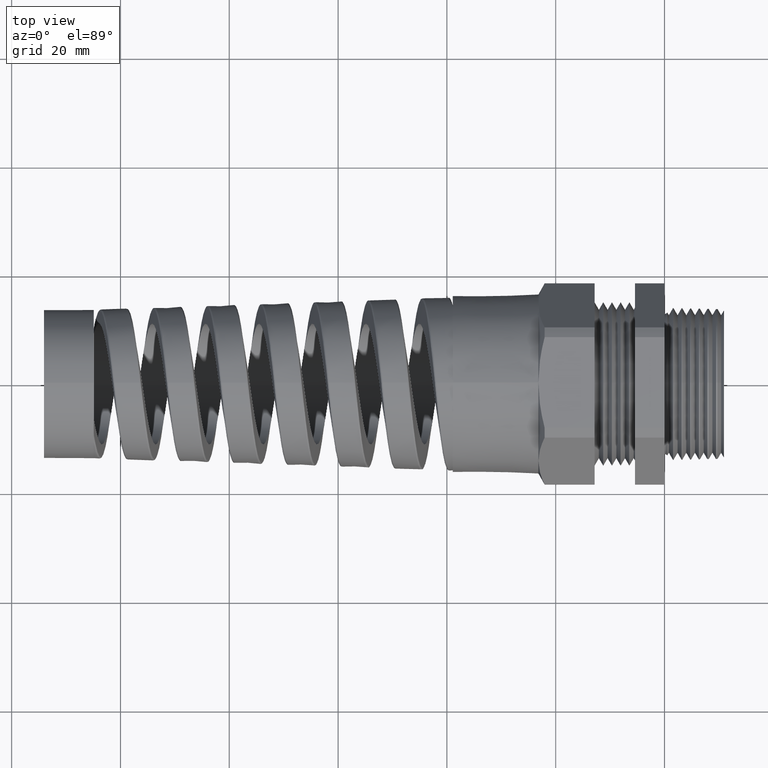
[diagram: clean part render]
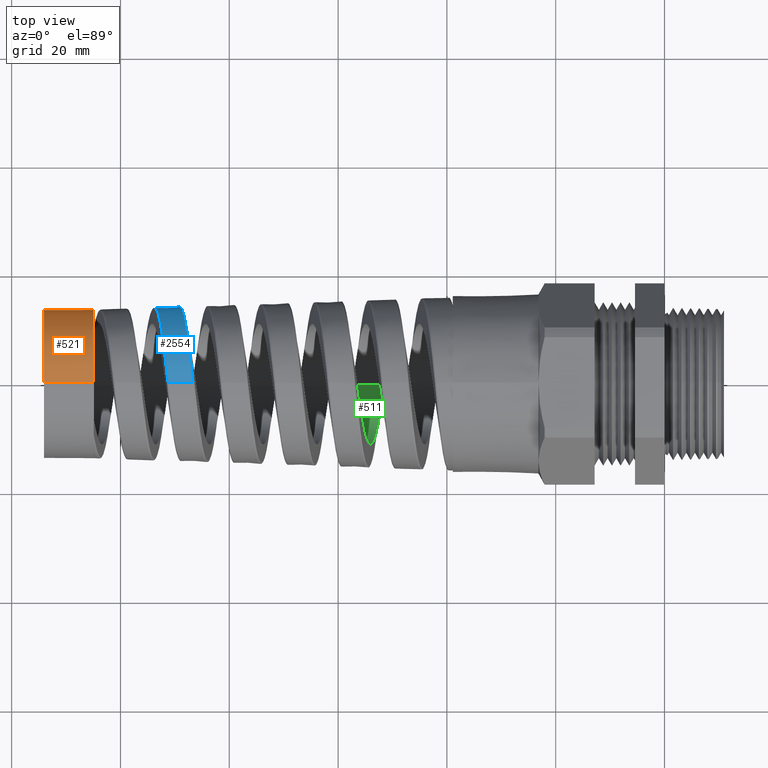
[diagram: same view with three faces highlighted in distinct colors, each labeled with its STEP entity id]
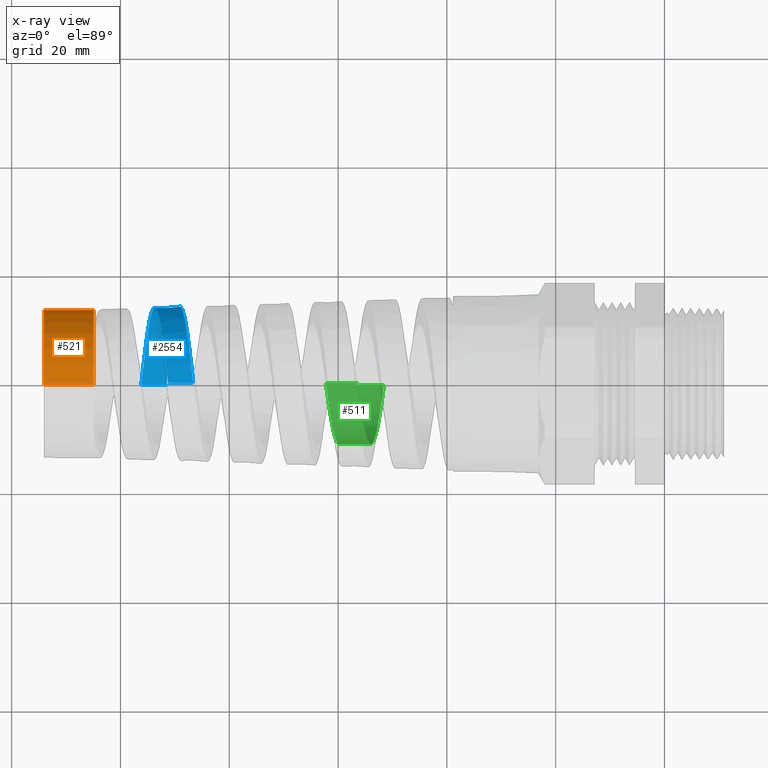
[diagram: x-ray of the same camera — body ghosted, the three highlighted faces saturated]
A machine part, top view with three faces highlighted in distinct colors.
The next image is the same camera in x-ray (body ghosted, the three faces saturated) — at least one of them is partly hidden behind the body in this view.
Their STEP definitions:

[orange] entity #521 — the highlighted cylindrical surface (partial cylindrical patch) has radius 13.6545 mm, axis along (1, 0, 0).
#198 = EDGE_LOOP ( 'NONE', ( #537, #534, #2073, #1815, #1701 ) ) ;
#521 = ADVANCED_FACE ( 'NONE', ( #2844 ), #2839, .T. ) ;
#522 = VERTEX_POINT ( 'NONE', #2834 ) ;
#523 = VERTEX_POINT ( 'NONE', #2833 ) ;
#532 = VERTEX_POINT ( 'NONE', #2966 ) ;
#534 = ORIENTED_EDGE ( 'NONE', *, *, #536, .T. ) ;
#536 = EDGE_CURVE ( 'NONE', #532, #523, #2960, .T. ) ;
#537 = ORIENTED_EDGE ( 'NONE', *, *, #553, .F. ) ;
#553 = EDGE_CURVE ( 'NONE', #532, #522, #2946, .T. ) ;
#1658 = EDGE_CURVE ( 'NONE', #522, #1688, #9304, .T. ) ;
#1660 = EDGE_CURVE ( 'NONE', #523, #1759, #9298, .T. ) ;
#1688 = VERTEX_POINT ( 'NONE', #9371 ) ;
#1701 = ORIENTED_EDGE ( 'NONE', *, *, #1658, .F. ) ;
#1759 = VERTEX_POINT ( 'NONE', #9602 ) ;
#1815 = ORIENTED_EDGE ( 'NONE', *, *, #2071, .F. ) ;
#2071 = EDGE_CURVE ( 'NONE', #1688, #1759, #9822, .T. ) ;
#2073 = ORIENTED_EDGE ( 'NONE', *, *, #1660, .T. ) ;
#2833 = CARTESIAN_POINT ( 'NONE',  ( -4.130799999999999800, 6.583458507736329500E-017, 0.5375801833083619900 ) ) ;
#2834 = CARTESIAN_POINT ( 'NONE',  ( -4.489999999999999300, 0.0000000000000000000, -0.5375801833083619900 ) ) ;
#2835 = DIRECTION ( 'NONE',  ( 0.0000000000000000000, 0.0000000000000000000, -1.000000000000000000 ) ) ;
#2836 = DIRECTION ( 'NONE',  ( 1.000000000000000000, 0.0000000000000000000, 0.0000000000000000000 ) ) ;
#2837 = CARTESIAN_POINT ( 'NONE',  ( -4.489999999999999300, 0.0000000000000000000, 0.0000000000000000000 ) ) ;
#2838 = AXIS2_PLACEMENT_3D ( 'NONE', #2837, #2836, #2835 ) ;
#2839 = CYLINDRICAL_SURFACE ( 'NONE', #2838, 0.5375801833083619900 ) ;
#2844 = FACE_OUTER_BOUND ( 'NONE', #198, .T. ) ;
#2942 = DIRECTION ( 'NONE',  ( 0.0000000000000000000, 0.0000000000000000000, 1.000000000000000000 ) ) ;
#2943 = DIRECTION ( 'NONE',  ( -1.000000000000000000, 0.0000000000000000000, 0.0000000000000000000 ) ) ;
#2944 = CARTESIAN_POINT ( 'NONE',  ( -4.489999999999999300, 0.0000000000000000000, 0.0000000000000000000 ) ) ;
#2945 = AXIS2_PLACEMENT_3D ( 'NONE', #2944, #2943, #2942 ) ;
#2946 = CIRCLE ( 'NONE', #2945, 0.5375801833083619900 ) ;
#2957 = DIRECTION ( 'NONE',  ( 1.000000000000000000, 0.0000000000000000000, 0.0000000000000000000 ) ) ;
#2958 = VECTOR ( 'NONE', #2957, 39.37007874015748100 ) ;
#2959 = CARTESIAN_POINT ( 'NONE',  ( -4.489999999999999300, 6.583458507736329500E-017, 0.5375801833083619900 ) ) ;
#2960 = LINE ( 'NONE', #2959, #2958 ) ;
#2966 = CARTESIAN_POINT ( 'NONE',  ( -4.489999999999999300, 6.583458507736329500E-017, 0.5375801833083619900 ) ) ;
#9292 = DIRECTION ( 'NONE',  ( 0.0000000000000000000, 0.0000000000000000000, 1.000000000000000000 ) ) ;
#9293 = DIRECTION ( 'NONE',  ( -1.000000000000000000, 0.0000000000000000000, 0.0000000000000000000 ) ) ;
#9295 = CARTESIAN_POINT ( 'NONE',  ( -4.130799999999999800, 0.0000000000000000000, 0.0000000000000000000 ) ) ;
#9296 = AXIS2_PLACEMENT_3D ( 'NONE', #9295, #9293, #9292 ) ;
#9298 = CIRCLE ( 'NONE', #9296, 0.5375801833083619900 ) ;
#9300 = DIRECTION ( 'NONE',  ( 1.000000000000000000, 0.0000000000000000000, 0.0000000000000000000 ) ) ;
#9301 = VECTOR ( 'NONE', #9300, 39.37007874015748100 ) ;
#9303 = CARTESIAN_POINT ( 'NONE',  ( -4.489999999999999300, 0.0000000000000000000, -0.5375801833083619900 ) ) ;
#9304 = LINE ( 'NONE', #9303, #9301 ) ;
#9371 = CARTESIAN_POINT ( 'NONE',  ( -4.130799999999999800, 0.0000000000000000000, -0.5375801833083612100 ) ) ;
#9602 = CARTESIAN_POINT ( 'NONE',  ( -4.130799999999999800, 0.3509568706405258300, -0.4072121418082477200 ) ) ;
#9822 = CIRCLE ( 'NONE', #9896, 0.5375801833083612100 ) ;
#9893 = DIRECTION ( 'NONE',  ( 0.0000000000000000000, 0.0000000000000000000, -1.000000000000000000 ) ) ;
#9894 = DIRECTION ( 'NONE',  ( 1.000000000000000000, 0.0000000000000000000, 0.0000000000000000000 ) ) ;
#9895 = CARTESIAN_POINT ( 'NONE',  ( -4.130799999999999800, 0.0000000000000000000, 0.0000000000000000000 ) ) ;
#9896 = AXIS2_PLACEMENT_3D ( 'NONE', #9895, #9894, #9893 ) ;

[blue] entity #2554 — the highlighted conical surface has half-angle 2.001 deg.
#2522 = VERTEX_POINT ( 'NONE', #10648 ) ;
#2523 = VERTEX_POINT ( 'NONE', #10646 ) ;
#2525 = ORIENTED_EDGE ( 'NONE', *, *, #2744, .T. ) ;
#2554 = ADVANCED_FACE ( 'NONE', ( #10780 ), #10778, .T. ) ;
#2565 = ORIENTED_EDGE ( 'NONE', *, *, #2566, .T. ) ;
#2566 = EDGE_CURVE ( 'NONE', #2523, #2522, #10768, .T. ) ;
#2744 = EDGE_CURVE ( 'NONE', #2522, #2745, #11619, .T. ) ;
#2745 = VERTEX_POINT ( 'NONE', #11615 ) ;
#2746 = ORIENTED_EDGE ( 'NONE', *, *, #2747, .T. ) ;
#2747 = EDGE_CURVE ( 'NONE', #2745, #2748, #11613, .T. ) ;
#2748 = VERTEX_POINT ( 'NONE', #11614 ) ;
#2749 = ORIENTED_EDGE ( 'NONE', *, *, #2750, .F. ) ;
#2750 = EDGE_CURVE ( 'NONE', #2523, #2748, #11641, .T. ) ;
#2766 = EDGE_LOOP ( 'NONE', ( #2565, #2525, #2746, #2749 ) ) ;
#10646 = CARTESIAN_POINT ( 'NONE',  ( -3.786872882697698700, 8.793065815992271000E-017, -0.5495940488530302000 ) ) ;
#10648 = CARTESIAN_POINT ( 'NONE',  ( -3.592956713912145900, 6.711776482264896600E-013, 0.5563678176590510800 ) ) ;
#10748 = CARTESIAN_POINT ( 'NONE',  ( -3.721976318761020900, 0.4793345083299178100, -0.2740841356049117900 ) ) ;
#10749 = CARTESIAN_POINT ( 'NONE',  ( -3.724006834402183100, 0.4699889070686809100, -0.2896701516364032500 ) ) ;
#10750 = CARTESIAN_POINT ( 'NONE',  ( -3.730069538837058400, 0.4398939662536319200, -0.3347182836577742800 ) ) ;
#10751 = CARTESIAN_POINT ( 'NONE',  ( -3.734082733646054000, 0.4170553963886068900, -0.3625806559591394600 ) ) ;
#10752 = CARTESIAN_POINT ( 'NONE',  ( -3.740173537076453100, 0.3785842919798662100, -0.4010639414473796100 ) ) ;
#10753 = CARTESIAN_POINT ( 'NONE',  ( -3.742224561312010900, 0.3649904517737623300, -0.4133778245951536000 ) ) ;
#10754 = CARTESIAN_POINT ( 'NONE',  ( -3.746287019097188000, 0.3369366985889102900, -0.4363674041494167200 ) ) ;
#10755 = CARTESIAN_POINT ( 'NONE',  ( -3.748307315232322100, 0.3224255991027689100, -0.4471044087300893300 ) ) ;
#10756 = CARTESIAN_POINT ( 'NONE',  ( -3.754363827391573600, 0.2774710994662995500, -0.4770855045460378800 ) ) ;
#10757 = CARTESIAN_POINT ( 'NONE',  ( -3.758401022980191200, 0.2455488150511674900, -0.4941511239814970800 ) ) ;
#10758 = CARTESIAN_POINT ( 'NONE',  ( -3.766583399758178400, 0.1780728269294687700, -0.5219721861470451000 ) ) ;
#10759 = CARTESIAN_POINT ( 'NONE',  ( -3.770612741754701100, 0.1435046124046407400, -0.5323375483973240600 ) ) ;
#10760 = CARTESIAN_POINT ( 'NONE',  ( -3.776680697380517100, 0.09046454295667541400, -0.5427576767025837900 ) ) ;
#10761 = CARTESIAN_POINT ( 'NONE',  ( -3.778706582737753300, 0.07258503309076297400, -0.5453701928112826300 ) ) ;
#10762 = CARTESIAN_POINT ( 'NONE',  ( -3.782784492218860300, 0.03641918926790598000, -0.5488298822402596400 ) ) ;
#10764 = CARTESIAN_POINT ( 'NONE',  ( -3.784839309415649800, 0.01811003797648081500, -0.5496650844729525900 ) ) ;
#10766 = CARTESIAN_POINT ( 'NONE',  ( -3.786872882697698700, 8.793065815992271000E-017, -0.5495940488530302000 ) ) ;
#10768 = B_SPLINE_CURVE_WITH_KNOTS ( 'NONE', 3,
 ( #10766, #10764, #10762, #10761, #10760, #10759, #10758, #10757, #10756, #10755, #10754, #10753, #10752, #10751, #10750, #10749, #10748, #10836, #10835, #10834, #10833, #10832, #10831, #10830, #10829, #10828, #10826, #10825, #10824, #10823, #10822, #10821, #10820, #10819, #10818, #10817, #10816, #10815, #10814, #10813, #10812, #10811, #10810, #10809, #10808, #10807, #10806, #10805, #10804, #10803, #10802 ),
 .UNSPECIFIED., .F., .F.,
 ( 4, 2, 2, 2, 2, 2, 2, 2, 2, 2, 2, 2, 2, 2, 2, 2, 2, 2, 2, 2, 2, 2, 2, 1, 2, 4 ),
 ( 0.07774599725852840400, 0.07913946500758369000, 0.08053293275663896100, 0.08331986825474951800, 0.08610680375286008900, 0.08750027150191536100, 0.08889373925097064600, 0.09168067474908120400, 0.09307414249813648900, 0.09446761024719177400, 0.09725454574530234500, 0.09864801349435761700, 0.1000414812434129000, 0.1014349489924681900, 0.1028284167415234700, 0.1056153522396340300, 0.1070088199886893200, 0.1084022877377446000, 0.1111892232358551700, 0.1125826909849104600, 0.1139761587339657400, 0.1167630942320763100, 0.1181565619811315900, 0.1195500297301868700, 0.1209434974792421600, 0.1223369652282974400 ),
 .UNSPECIFIED. ) ;
#10773 = DIRECTION ( 'NONE',  ( 0.0000000000000000000, 0.0000000000000000000, -1.000000000000000000 ) ) ;
#10774 = DIRECTION ( 'NONE',  ( 1.000000000000000000, 0.0000000000000000000, 0.0000000000000000000 ) ) ;
#10776 = AXIS2_PLACEMENT_3D ( 'NONE', #10785, #10774, #10773 ) ;
#10778 = CONICAL_SURFACE ( 'NONE', #10776, 0.6499999999999998000, 0.03491723117042443800 ) ;
#10780 = FACE_OUTER_BOUND ( 'NONE', #2766, .T. ) ;
#10785 = CARTESIAN_POINT ( 'NONE',  ( -0.9125000000000002000, 0.0000000000000000000, 0.0000000000000000000 ) ) ;
#10802 = CARTESIAN_POINT ( 'NONE',  ( -3.592956713912145900, 6.711776482264896600E-013, 0.5563678176590510800 ) ) ;
#10803 = CARTESIAN_POINT ( 'NONE',  ( -3.594975328608625900, 0.01818938794613618100, 0.5562973045638707200 ) ) ;
#10804 = CARTESIAN_POINT ( 'NONE',  ( -3.597003822131915400, 0.03646509708099554500, 0.5553247683803280700 ) ) ;
#10805 = CARTESIAN_POINT ( 'NONE',  ( -3.601019615082181600, 0.07246810546706725100, 0.5516408642106691600 ) ) ;
#10806 = CARTESIAN_POINT ( 'NONE',  ( -3.605016550011642500, 0.1081201511400139600, 0.5462215263719368800 ) ) ;
#10807 = CARTESIAN_POINT ( 'NONE',  ( -3.609015742525038700, 0.1430757348748128700, 0.5373805386476870900 ) ) ;
#10808 = CARTESIAN_POINT ( 'NONE',  ( -3.613035086517779600, 0.1776761223276129600, 0.5268051369748201200 ) ) ;
#10809 = CARTESIAN_POINT ( 'NONE',  ( -3.615065379182405900, 0.1948858789965780300, 0.5206121479876301100 ) ) ;
#10810 = CARTESIAN_POINT ( 'NONE',  ( -3.621132376340784600, 0.2452767292070364100, 0.4996146066889207700 ) ) ;
#10811 = CARTESIAN_POINT ( 'NONE',  ( -3.625118807812819400, 0.2770366084438142300, 0.4825426263020590700 ) ) ;
#10812 = CARTESIAN_POINT ( 'NONE',  ( -3.631132896519490200, 0.3219862225971055800, 0.4524522156606626800 ) ) ;
#10813 = CARTESIAN_POINT ( 'NONE',  ( -3.633143174939240900, 0.3365179340165221900, 0.4416697540726756700 ) ) ;
#10814 = CARTESIAN_POINT ( 'NONE',  ( -3.637194338529485800, 0.3646499104731839600, 0.4185569079785104200 ) ) ;
#10815 = CARTESIAN_POINT ( 'NONE',  ( -3.639226317744657500, 0.3781810399430826600, 0.4062701722293198800 ) ) ;
#10816 = CARTESIAN_POINT ( 'NONE',  ( -3.645264261100836600, 0.4165190212296219800, 0.3678797167488683800 ) ) ;
#10817 = CARTESIAN_POINT ( 'NONE',  ( -3.649252431311701600, 0.4393701236757408000, 0.3400373331793495300 ) ) ;
#10818 = CARTESIAN_POINT ( 'NONE',  ( -3.655300002431883100, 0.4695623794842515000, 0.2948990998837609000 ) ) ;
#10819 = CARTESIAN_POINT ( 'NONE',  ( -3.657337987459857900, 0.4789864817366048500, 0.2791955896703906000 ) ) ;
#10820 = CARTESIAN_POINT ( 'NONE',  ( -3.661389908738693900, 0.4961316575103303400, 0.2471330939366228100 ) ) ;
#10821 = CARTESIAN_POINT ( 'NONE',  ( -3.663402661847217100, 0.5038592997179742700, 0.2307891315350192300 ) ) ;
#10822 = CARTESIAN_POINT ( 'NONE',  ( -3.669427941334270300, 0.5245703399284914500, 0.1808454612418020100 ) ) ;
#10823 = CARTESIAN_POINT ( 'NONE',  ( -3.673428611777878100, 0.5351051972309368600, 0.1463427011012210500 ) ) ;
#10824 = CARTESIAN_POINT ( 'NONE',  ( -3.679527369431657000, 0.5458232346784793700, 0.09272803221813948100 ) ) ;
#10825 = CARTESIAN_POINT ( 'NONE',  ( -3.681560032797432900, 0.5485059963340340700, 0.07468968730657667100 ) ) ;
#10826 = CARTESIAN_POINT ( 'NONE',  ( -3.685594274015622700, 0.5520707902169792500, 0.03872084001069588800 ) ) ;
#10828 = CARTESIAN_POINT ( 'NONE',  ( -3.687603072730576000, 0.5529666435294032800, 0.02072330459333602100 ) ) ;
#10829 = CARTESIAN_POINT ( 'NONE',  ( -3.691622728448419500, 0.5530029961187050700, -0.01529564852426816200 ) ) ;
#10830 = CARTESIAN_POINT ( 'NONE',  ( -3.693633815897092700, 0.5521435173578884700, -0.03331704007563229100 ) ) ;
#10831 = CARTESIAN_POINT ( 'NONE',  ( -3.697679087956216900, 0.5486368858935810600, -0.06938178968158872900 ) ) ;
#10832 = CARTESIAN_POINT ( 'NONE',  ( -3.699724194793355500, 0.5459661007160435700, -0.08752034006007752800 ) ) ;
#10833 = CARTESIAN_POINT ( 'NONE',  ( -3.705810584416058300, 0.5353731402795134400, -0.1409561408941920600 ) ) ;
#10834 = CARTESIAN_POINT ( 'NONE',  ( -3.709819654884785500, 0.5249211815363272700, -0.1754421560487115500 ) ) ;
#10835 = CARTESIAN_POINT ( 'NONE',  ( -3.715870649127721600, 0.5042511689903932400, -0.2254826838556024100 ) ) ;
#10836 = CARTESIAN_POINT ( 'NONE',  ( -3.717894309921451900, 0.4965233382165746300, -0.2418794314533877800 ) ) ;
#11602 = CARTESIAN_POINT ( 'NONE',  ( -3.451819624713895300, 0.3403863444468799300, 0.4466906896026271400 ) ) ;
#11603 = CARTESIAN_POINT ( 'NONE',  ( -3.449794954207890700, 0.3255793042531155400, 0.4576756642475489600 ) ) ;
#11604 = CARTESIAN_POINT ( 'NONE',  ( -3.443765359008955000, 0.2800008027699310600, 0.4881673185349968400 ) ) ;
#11605 = CARTESIAN_POINT ( 'NONE',  ( -3.439776656221507100, 0.2478917954253484800, 0.5053920679559840100 ) ) ;
#11606 = CARTESIAN_POINT ( 'NONE',  ( -3.433735391218293300, 0.1971344035792354800, 0.5265347796481461000 ) ) ;
#11607 = CARTESIAN_POINT ( 'NONE',  ( -3.431701092342977200, 0.1796848275237597200, 0.5328184821684147600 ) ) ;
#11608 = CARTESIAN_POINT ( 'NONE',  ( -3.427667323514409100, 0.1445510091054106300, 0.5435490553470346800 ) ) ;
#11609 = CARTESIAN_POINT ( 'NONE',  ( -3.425663288139404500, 0.1268322005648097900, 0.5480215782717993100 ) ) ;
#11610 = CARTESIAN_POINT ( 'NONE',  ( -3.419659858477366300, 0.07323389524680103100, 0.5588230197318948500 ) ) ;
#11611 = CARTESIAN_POINT ( 'NONE',  ( -3.415669374363583100, 0.03691669028861231700, 0.5625607177037322800 ) ) ;
#11612 = CARTESIAN_POINT ( 'NONE',  ( -3.411619826178117400, -2.566519891599238100E-016, 0.5627021742070706900 ) ) ;
#11613 = B_SPLINE_CURVE_WITH_KNOTS ( 'NONE', 3,
 ( #11612, #11611, #11610, #11609, #11608, #11607, #11606, #11605, #11604, #11603, #11602, #11682, #11681, #11680, #11679, #11678, #11677, #11676, #11675, #11674, #11673, #11672, #11671, #11670, #11669, #11668, #11667, #11666, #11665, #11664, #11663, #11662, #11661, #11660, #11659, #11658, #11657, #11656, #11655, #11654, #11653, #11652, #11651, #11650, #11649, #11648, #11647, #11646, #11645, #11644, #11643, #11642 ),
 .UNSPECIFIED., .F., .F.,
 ( 4, 2, 2, 2, 2, 2, 2, 2, 2, 2, 2, 2, 2, 2, 2, 2, 2, 2, 2, 2, 2, 2, 2, 2, 2, 4 ),
 ( 0.4642204090484241500, 0.4670326102936533400, 0.4684387109162679300, 0.4698448115388825800, 0.4726570127841117600, 0.4740631134067263600, 0.4754692140293409500, 0.4782814152745701900, 0.4796875158971847800, 0.4810936165197993700, 0.4824997171424139600, 0.4839058177650286100, 0.4867180190102578000, 0.4881241196328723900, 0.4895302202554870400, 0.4923424215007162200, 0.4937485221233308700, 0.4951546227459454600, 0.4979668239911746500, 0.4993729246137892900, 0.5007790252364038300, 0.5021851258590185300, 0.5035912264816331300, 0.5064034277268623100, 0.5078095283494769000, 0.5092156289720914900 ),
 .UNSPECIFIED. ) ;
#11614 = CARTESIAN_POINT ( 'NONE',  ( -3.605571630806737800, 4.469891858230890000E-013, -0.5559271605901419100 ) ) ;
#11615 = CARTESIAN_POINT ( 'NONE',  ( -3.411619826178117400, -2.566519891599238100E-016, 0.5627021742070706900 ) ) ;
#11616 = DIRECTION ( 'NONE',  ( 0.9993904554178625300, 4.275258673359075800E-018, 0.03491013634572578300 ) ) ;
#11617 = VECTOR ( 'NONE', #11616, 39.37007874015748900 ) ;
#11618 = CARTESIAN_POINT ( 'NONE',  ( -0.9125000000000002000, 7.960204194457793000E-017, 0.6499999999999998000 ) ) ;
#11619 = LINE ( 'NONE', #11618, #11617 ) ;
#11638 = DIRECTION ( 'NONE',  ( 0.9993904554178625300, 0.0000000000000000000, -0.03491013634572578300 ) ) ;
#11639 = VECTOR ( 'NONE', #11638, 39.37007874015748900 ) ;
#11640 = CARTESIAN_POINT ( 'NONE',  ( -0.9125000000000002000, 0.0000000000000000000, -0.6499999999999998000 ) ) ;
#11641 = LINE ( 'NONE', #11640, #11639 ) ;
#11642 = CARTESIAN_POINT ( 'NONE',  ( -3.605571630806737800, 4.469891858230890000E-013, -0.5559271605901419100 ) ) ;
#11643 = CARTESIAN_POINT ( 'NONE',  ( -3.603543356479649500, 0.01826346790207381000, -0.5559980111099830400 ) ) ;
#11644 = CARTESIAN_POINT ( 'NONE',  ( -3.601506137666570200, 0.03661013569120483100, -0.5551700103807780700 ) ) ;
#11645 = CARTESIAN_POINT ( 'NONE',  ( -3.597404305528845400, 0.07338190767338882700, -0.5516597764719127800 ) ) ;
#11646 = CARTESIAN_POINT ( 'NONE',  ( -3.595370988506294100, 0.09152849609625453300, -0.5490056265520821800 ) ) ;
#11647 = CARTESIAN_POINT ( 'NONE',  ( -3.589294333534529500, 0.1452719893260523100, -0.5384393062742409700 ) ) ;
#11648 = CARTESIAN_POINT ( 'NONE',  ( -3.585272764309769000, 0.1801789610120001500, -0.5279475367515843500 ) ) ;
#11649 = CARTESIAN_POINT ( 'NONE',  ( -3.579162594014605200, 0.2311196449880536500, -0.5069541914473086900 ) ) ;
#11650 = CARTESIAN_POINT ( 'NONE',  ( -3.577108132008480100, 0.2478954254746559000, -0.4990443165399904300 ) ) ;
#11651 = CARTESIAN_POINT ( 'NONE',  ( -3.573044292357937300, 0.2802362521999167100, -0.4817916056939708400 ) ) ;
#11652 = CARTESIAN_POINT ( 'NONE',  ( -3.571024519228138700, 0.2958941641231707100, -0.4724158493792295400 ) ) ;
#11653 = CARTESIAN_POINT ( 'NONE',  ( -3.566988831189476200, 0.3262018533402844500, -0.4521941428386651000 ) ) ;
#11654 = CARTESIAN_POINT ( 'NONE',  ( -3.564972816796959900, 0.3408516036116522300, -0.4413481728011343600 ) ) ;
#11655 = CARTESIAN_POINT ( 'NONE',  ( -3.560923977823248000, 0.3691308108724508100, -0.4181723836129578900 ) ) ;
#11656 = CARTESIAN_POINT ( 'NONE',  ( -3.558883286134959500, 0.3828103581934331800, -0.4057918254161808600 ) ) ;
#11657 = CARTESIAN_POINT ( 'NONE',  ( -3.552759252981956300, 0.4219122588163936600, -0.3666862432881609600 ) ) ;
#11658 = CARTESIAN_POINT ( 'NONE',  ( -3.548739846854359800, 0.4450247874699047600, -0.3384504134649146700 ) ) ;
#11659 = CARTESIAN_POINT ( 'NONE',  ( -3.542690982255247300, 0.4754000811231273200, -0.2929661698342345700 ) ) ;
#11660 = CARTESIAN_POINT ( 'NONE',  ( -3.540671038093102600, 0.4848044159145015700, -0.2772792754330081800 ) ) ;
#11661 = CARTESIAN_POINT ( 'NONE',  ( -3.536603112235419100, 0.5021321692893349100, -0.2448286341805410700 ) ) ;
#11662 = CARTESIAN_POINT ( 'NONE',  ( -3.534557546601225100, 0.5100336048416904700, -0.2280791441686170500 ) ) ;
#11663 = CARTESIAN_POINT ( 'NONE',  ( -3.528484679820574200, 0.5309946176223900900, -0.1773172639592943400 ) ) ;
#11664 = CARTESIAN_POINT ( 'NONE',  ( -3.524478498024750600, 0.5415369123085709300, -0.1424419247810046500 ) ) ;
#11665 = CARTESIAN_POINT ( 'NONE',  ( -3.518416436913278200, 0.5522095011662426800, -0.08859329267726953600 ) ) ;
#11666 = CARTESIAN_POINT ( 'NONE',  ( -3.516375885500896200, 0.5549118441603778700, -0.07028915045077351000 ) ) ;
#11667 = CARTESIAN_POINT ( 'NONE',  ( -3.512311022477883100, 0.5584748167439678200, -0.03365081474112619600 ) ) ;
#11668 = CARTESIAN_POINT ( 'NONE',  ( -3.510292807980000400, 0.5593413558406795700, -0.01537373045854809200 ) ) ;
#11669 = CARTESIAN_POINT ( 'NONE',  ( -3.504252705297646700, 0.5592724773342351300, 0.03933179434212617100 ) ) ;
#11670 = CARTESIAN_POINT ( 'NONE',  ( -3.500248595234781000, 0.5556935754160248200, 0.07563605975972476100 ) ) ;
#11671 = CARTESIAN_POINT ( 'NONE',  ( -3.494155597925927600, 0.5448695114969210900, 0.1298224684941296200 ) ) ;
#11672 = CARTESIAN_POINT ( 'NONE',  ( -3.492120348773798600, 0.5403551116602103300, 0.1477427008036644200 ) ) ;
#11673 = CARTESIAN_POINT ( 'NONE',  ( -3.488086550224699600, 0.5296949945808531200, 0.1827363375643201400 ) ) ;
#11674 = CARTESIAN_POINT ( 'NONE',  ( -3.486078418444654000, 0.5235331973392181000, 0.1998954904472048100 ) ) ;
#11675 = CARTESIAN_POINT ( 'NONE',  ( -3.482062158859317700, 0.5095675450162908700, 0.2335450917843400200 ) ) ;
#11676 = CARTESIAN_POINT ( 'NONE',  ( -3.480054532270222500, 0.5017636616309039100, 0.2500355886444539700 ) ) ;
#11677 = CARTESIAN_POINT ( 'NONE',  ( -3.476020292433541000, 0.4844886549192253800, 0.2823353520989213000 ) ) ;
#11678 = CARTESIAN_POINT ( 'NONE',  ( -3.473982224594952300, 0.4749574656918315000, 0.2982285453972859900 ) ) ;
#11679 = CARTESIAN_POINT ( 'NONE',  ( -3.467909485621319300, 0.4442901856109494100, 0.3440680784711893100 ) ) ;
#11680 = CARTESIAN_POINT ( 'NONE',  ( -3.463913021944010400, 0.4211369711536241400, 0.3722322662690613600 ) ) ;
#11681 = CARTESIAN_POINT ( 'NONE',  ( -3.457888162188450300, 0.3824446347763131900, 0.4109580530838363700 ) ) ;
#11682 = CARTESIAN_POINT ( 'NONE',  ( -3.455875445669861300, 0.3688820781997960200, 0.4232758245537748800 ) ) ;

[green] entity #511 — the highlighted cylindrical surface (partial cylindrical patch) has radius 11.1145 mm, axis along (1, 0, 0).
#507 = EDGE_LOOP ( 'NONE', ( #13882, #13560, #13885, #13928 ) ) ;
#511 = ADVANCED_FACE ( 'NONE', ( #2798 ), #2797, .F. ) ;
#524 = VERTEX_POINT ( 'NONE', #2832 ) ;
#2792 = DIRECTION ( 'NONE',  ( 0.0000000000000000000, 0.0000000000000000000, -1.000000000000000000 ) ) ;
#2793 = DIRECTION ( 'NONE',  ( 1.000000000000000000, 0.0000000000000000000, 0.0000000000000000000 ) ) ;
#2794 = CARTESIAN_POINT ( 'NONE',  ( 0.4924815508901369000, 0.0000000000000000000, 0.0000000000000000000 ) ) ;
#2795 = AXIS2_PLACEMENT_3D ( 'NONE', #2794, #2793, #2792 ) ;
#2797 = CYLINDRICAL_SURFACE ( 'NONE', #2795, 0.4375801833083611800 ) ;
#2798 = FACE_OUTER_BOUND ( 'NONE', #507, .T. ) ;
#2832 = CARTESIAN_POINT ( 'NONE',  ( -2.224074186770075300, -4.659743002380564000E-013, 0.4375801833083609600 ) ) ;
#12839 = DIRECTION ( 'NONE',  ( 1.000000000000000000, 0.0000000000000000000, 0.0000000000000000000 ) ) ;
#12840 = VECTOR ( 'NONE', #12839, 39.37007874015748100 ) ;
#12841 = CARTESIAN_POINT ( 'NONE',  ( 0.4924815508901369000, 5.358811708588965500E-017, 0.4375801833083611800 ) ) ;
#12842 = LINE ( 'NONE', #12841, #12840 ) ;
#12879 = CARTESIAN_POINT ( 'NONE',  ( -2.258620762915902500, -1.070523724210977600E-012, -0.4375801833083611300 ) ) ;
#13088 = B_SPLINE_CURVE_WITH_KNOTS ( 'NONE', 3,
 ( #13165, #13164, #13163, #13162, #13161, #13160, #13159, #13158, #13157, #13156, #13155, #13154, #13153, #13152, #13151, #13150, #13149, #13148, #13147, #13146, #13145, #13144, #13143, #13142, #13141, #13140, #13139, #13138, #13137, #13136, #13135, #13134, #13133, #13132, #13131, #13130, #13129, #13128, #13127, #13126, #13125, #13124, #13123, #13122, #13121, #13120, #13119, #13118, #13117, #13116, #13204 ),
 .UNSPECIFIED., .F., .F.,
 ( 4, 2, 2, 2, 2, 2, 2, 2, 2, 1, 2, 2, 2, 2, 2, 2, 2, 2, 2, 2, 2, 2, 2, 2, 2, 4 ),
 ( 0.3044985576627178300, 0.3066900642004397600, 0.3077858174693007300, 0.3088815707381616900, 0.3110730772758836200, 0.3121688305447445400, 0.3132645838136055000, 0.3154560903513274300, 0.3165518436201884000, 0.3176475968890493700, 0.3187433501579103300, 0.3198391034267713000, 0.3220306099644932300, 0.3231263632333541400, 0.3242221165022151100, 0.3264136230399370400, 0.3275093763087980100, 0.3286051295776589700, 0.3307966361153808500, 0.3318923893842418100, 0.3329881426531027800, 0.3340838959219636900, 0.3351796491908246600, 0.3373711557285465900, 0.3384669089974075000, 0.3395626622662684700 ),
 .UNSPECIFIED. ) ;
#13096 = CARTESIAN_POINT ( 'NONE',  ( -2.451956386114949800, 6.440139562001444600E-013, 0.4375801833083609600 ) ) ;
#13098 = CARTESIAN_POINT ( 'NONE',  ( -2.029541497725927200, 4.306929102511314400E-015, -0.4375801833083609600 ) ) ;
#13116 = CARTESIAN_POINT ( 'NONE',  ( -2.260631144464177600, -0.01429736749678253000, -0.4375801833083262100 ) ) ;
#13117 = CARTESIAN_POINT ( 'NONE',  ( -2.262654672621158300, -0.02868957933506149600, -0.4368771789995517500 ) ) ;
#13118 = CARTESIAN_POINT ( 'NONE',  ( -2.266714197087520400, -0.05741780603807988100, -0.4340368153081055600 ) ) ;
#13119 = CARTESIAN_POINT ( 'NONE',  ( -2.268728380226977800, -0.07159892526825925600, -0.4319188434311483900 ) ) ;
#13120 = CARTESIAN_POINT ( 'NONE',  ( -2.274753908600478400, -0.1136068972231142200, -0.4235391316899568300 ) ) ;
#13121 = CARTESIAN_POINT ( 'NONE',  ( -2.278746564114404900, -0.1409035342979909600, -0.4152701488458606600 ) ) ;
#13122 = CARTESIAN_POINT ( 'NONE',  ( -2.284810754655644900, -0.1807483163298909100, -0.3987645099392323500 ) ) ;
#13123 = CARTESIAN_POINT ( 'NONE',  ( -2.286847938023006700, -0.1938586852182419600, -0.3925566165978872100 ) ) ;
#13124 = CARTESIAN_POINT ( 'NONE',  ( -2.290879661837267500, -0.2191342156493535100, -0.3790278124373837600 ) ) ;
#13125 = CARTESIAN_POINT ( 'NONE',  ( -2.292885340041802300, -0.2313740054665390000, -0.3716794358643004100 ) ) ;
#13126 = CARTESIAN_POINT ( 'NONE',  ( -2.296895056275825900, -0.2550690403721436700, -0.3558360831811024900 ) ) ;
#13127 = CARTESIAN_POINT ( 'NONE',  ( -2.298898996678341100, -0.2665242870286379500, -0.3473410849352134800 ) ) ;
#13128 = CARTESIAN_POINT ( 'NONE',  ( -2.302922270386017700, -0.2886396227766868100, -0.3291932457135576300 ) ) ;
#13129 = CARTESIAN_POINT ( 'NONE',  ( -2.304949848384558700, -0.2993397411771105400, -0.3194997712059756100 ) ) ;
#13130 = CARTESIAN_POINT ( 'NONE',  ( -2.311033060396182400, -0.3299198845521641400, -0.2888964470171821500 ) ) ;
#13131 = CARTESIAN_POINT ( 'NONE',  ( -2.315028976450318700, -0.3480023333681570000, -0.2668042282274139000 ) ) ;
#13132 = CARTESIAN_POINT ( 'NONE',  ( -2.321048201367502900, -0.3717721177725207300, -0.2312257233148948000 ) ) ;
#13133 = CARTESIAN_POINT ( 'NONE',  ( -2.323058267310511100, -0.3791324723926308100, -0.2189565651485585200 ) ) ;
#13134 = CARTESIAN_POINT ( 'NONE',  ( -2.327104545060847000, -0.3926962716522666700, -0.1935795631636075000 ) ) ;
#13135 = CARTESIAN_POINT ( 'NONE',  ( -2.329139976219170500, -0.3988869489592437600, -0.1804739404896905900 ) ) ;
#13136 = CARTESIAN_POINT ( 'NONE',  ( -2.335183138508808700, -0.4153120241214286500, -0.1407595010334573600 ) ) ;
#13137 = CARTESIAN_POINT ( 'NONE',  ( -2.339173659127110400, -0.4235778277085454100, -0.1134790614769266800 ) ) ;
#13138 = CARTESIAN_POINT ( 'NONE',  ( -2.345213164399195800, -0.4319576828249688800, -0.07137080107867149700 ) ) ;
#13139 = CARTESIAN_POINT ( 'NONE',  ( -2.347244523359265600, -0.4340824057386514800, -0.05706563411870245500 ) ) ;
#13140 = CARTESIAN_POINT ( 'NONE',  ( -2.351296542531955400, -0.4368961401052970400, -0.02838634055875430600 ) ) ;
#13141 = CARTESIAN_POINT ( 'NONE',  ( -2.353307717389440800, -0.4375862695648205500, -0.01408158829204511500 ) ) ;
#13142 = CARTESIAN_POINT ( 'NONE',  ( -2.359327514331101700, -0.4375678897994482700, 0.02872680117677773500 ) ) ;
#13143 = CARTESIAN_POINT ( 'NONE',  ( -2.363322727291834500, -0.4347900595294704700, 0.05712552972030398400 ) ) ;
#13144 = CARTESIAN_POINT ( 'NONE',  ( -2.369398530116092200, -0.4263626290356626900, 0.09949196793107813200 ) ) ;
#13145 = CARTESIAN_POINT ( 'NONE',  ( -2.371431820790405700, -0.4228372981594399300, 0.1135342588733440200 ) ) ;
#13146 = CARTESIAN_POINT ( 'NONE',  ( -2.375458154324839200, -0.4145112089058110600, 0.1409321338238294100 ) ) ;
#13147 = CARTESIAN_POINT ( 'NONE',  ( -2.379465636222719100, -0.4048826012741724700, 0.1677940115044034600 ) ) ;
#13148 = CARTESIAN_POINT ( 'NONE',  ( -2.383474803279867600, -0.3926868804372709000, 0.1935935604372181800 ) ) ;
#13149 = CARTESIAN_POINT ( 'NONE',  ( -2.387503411048101900, -0.3791902963614103800, 0.2188519404886785400 ) ) ;
#13150 = CARTESIAN_POINT ( 'NONE',  ( -2.389538297575911000, -0.3717470281984044400, 0.2312743385147531000 ) ) ;
#13151 = CARTESIAN_POINT ( 'NONE',  ( -2.395612144960058000, -0.3477391004099900700, 0.2671758935470078300 ) ) ;
#13152 = CARTESIAN_POINT ( 'NONE',  ( -2.399603973064571500, -0.3296153760787718900, 0.2892139101418067000 ) ) ;
#13153 = CARTESIAN_POINT ( 'NONE',  ( -2.405625047649658600, -0.2993454183581120100, 0.3194876814806901200 ) ) ;
#13154 = CARTESIAN_POINT ( 'NONE',  ( -2.407637450319287900, -0.2887377526741097300, 0.3291118395059649000 ) ) ;
#13155 = CARTESIAN_POINT ( 'NONE',  ( -2.411691970224176800, -0.2664581000824090600, 0.3473962775027507600 ) ) ;
#13156 = CARTESIAN_POINT ( 'NONE',  ( -2.413723083037695000, -0.2548409005679218600, 0.3560018319750457000 ) ) ;
#13157 = CARTESIAN_POINT ( 'NONE',  ( -2.419759873207105300, -0.2191352801239291000, 0.3798357992868796600 ) ) ;
#13158 = CARTESIAN_POINT ( 'NONE',  ( -2.423748169389930800, -0.1939951659542451000, 0.3932726571287971700 ) ) ;
#13159 = CARTESIAN_POINT ( 'NONE',  ( -2.429793810762398200, -0.1542877666667608600, 0.4097279273979347300 ) ) ;
#13160 = CARTESIAN_POINT ( 'NONE',  ( -2.431830816864705800, -0.1406388401666016400, 0.4146131381217675900 ) ) ;
#13161 = CARTESIAN_POINT ( 'NONE',  ( -2.435877813166122100, -0.1131051516867917100, 0.4229545629597754600 ) ) ;
#13162 = CARTESIAN_POINT ( 'NONE',  ( -2.437887270188306800, -0.09922513196572696500, 0.4264202153031571600 ) ) ;
#13163 = CARTESIAN_POINT ( 'NONE',  ( -2.443903592228761700, -0.05725814355354373600, 0.4347545995794559500 ) ) ;
#13164 = CARTESIAN_POINT ( 'NONE',  ( -2.447898563497506300, -0.02884733049317139400, 0.4375801833084035400 ) ) ;
#13165 = CARTESIAN_POINT ( 'NONE',  ( -2.451956386114949800, 6.440139562001444600E-013, 0.4375801833083609600 ) ) ;
#13166 = CARTESIAN_POINT ( 'NONE',  ( -2.167325867889610300, -0.3479598389820763300, 0.2668623223617702700 ) ) ;
#13167 = CARTESIAN_POINT ( 'NONE',  ( -2.161264501950100700, -0.3717542928619607700, 0.2312551524118439100 ) ) ;
#13168 = CARTESIAN_POINT ( 'NONE',  ( -2.159239004437691900, -0.3791291645642077500, 0.2189648870646450900 ) ) ;
#13169 = CARTESIAN_POINT ( 'NONE',  ( -2.155156917264246600, -0.3927283620619014300, 0.1935173863573064200 ) ) ;
#13170 = CARTESIAN_POINT ( 'NONE',  ( -2.153118837618455100, -0.3988859695557520600, 0.1804740686165621200 ) ) ;
#13171 = CARTESIAN_POINT ( 'NONE',  ( -2.147048659549107200, -0.4152839728896854400, 0.1408318003655921200 ) ) ;
#13172 = CARTESIAN_POINT ( 'NONE',  ( -2.143032273773087100, -0.4235612284107450600, 0.1135543310833776000 ) ) ;
#13173 = CARTESIAN_POINT ( 'NONE',  ( -2.136945275362515300, -0.4319588857909678100, 0.07136882151551125800 ) ) ;
#13174 = CARTESIAN_POINT ( 'NONE',  ( -2.134895112817934800, -0.4340875568814867000, 0.05701675059480440500 ) ) ;
#13175 = CARTESIAN_POINT ( 'NONE',  ( -2.130829068085458000, -0.4368930913872775500, 0.02841379217556170800 ) ) ;
#13176 = CARTESIAN_POINT ( 'NONE',  ( -2.128808798583083900, -0.4375842036901258500, 0.01413376188336055000 ) ) ;
#13177 = CARTESIAN_POINT ( 'NONE',  ( -2.122756061496260800, -0.4375720898984806800, -0.02863930595749713700 ) ) ;
#13178 = CARTESIAN_POINT ( 'NONE',  ( -2.118731721556124500, -0.4348032976583464100, -0.05706597847671637100 ) ) ;
#13179 = CARTESIAN_POINT ( 'NONE',  ( -2.110559109122196000, -0.4235321699923659300, -0.1137142670716177900 ) ) ;
#13180 = CARTESIAN_POINT ( 'NONE',  ( -2.106526298476644000, -0.4151801246878834600, -0.1411186182601709100 ) ) ;
#13181 = CARTESIAN_POINT ( 'NONE',  ( -2.100475049148183200, -0.3988170585755572700, -0.1806225802499552000 ) ) ;
#13182 = CARTESIAN_POINT ( 'NONE',  ( -2.098455722845294200, -0.3927158756574676800, -0.1935367891340081800 ) ) ;
#13183 = CARTESIAN_POINT ( 'NONE',  ( -2.094394260509872700, -0.3791952324408153800, -0.2188452042788904300 ) ) ;
#13184 = CARTESIAN_POINT ( 'NONE',  ( -2.092342759784032100, -0.3717333133965493600, -0.2312941121723303400 ) ) ;
#13185 = CARTESIAN_POINT ( 'NONE',  ( -2.086247689010575900, -0.3477872974131532800, -0.2671052896199799200 ) ) ;
#13186 = CARTESIAN_POINT ( 'NONE',  ( -2.082233532857766400, -0.3296862011715970800, -0.2891361891713518100 ) ) ;
#13187 = CARTESIAN_POINT ( 'NONE',  ( -2.074146047575248500, -0.2892899246868272900, -0.3295513110369617800 ) ) ;
#13188 = CARTESIAN_POINT ( 'NONE',  ( -2.070039768523756600, -0.2667592366374644800, -0.3480409000927888200 ) ) ;
#13189 = CARTESIAN_POINT ( 'NONE',  ( -2.061954283160216200, -0.2192306954233353700, -0.3797773830193183500 ) ) ;
#13190 = CARTESIAN_POINT ( 'NONE',  ( -2.057939804713173600, -0.1940915718653377400, -0.3932293282214622300 ) ) ;
#13191 = CARTESIAN_POINT ( 'NONE',  ( -2.051843706692646500, -0.1543053912913711900, -0.4097223078466878900 ) ) ;
#13192 = CARTESIAN_POINT ( 'NONE',  ( -2.049791440612649400, -0.1406391468745729900, -0.4146118319841044000 ) ) ;
#13193 = CARTESIAN_POINT ( 'NONE',  ( -2.045729945222613200, -0.1131725308386681100, -0.4229353604493166200 ) ) ;
#13194 = CARTESIAN_POINT ( 'NONE',  ( -2.043711463376744600, -0.09931398169376852400, -0.4263992419199122400 ) ) ;
#13195 = CARTESIAN_POINT ( 'NONE',  ( -2.037661869880944100, -0.05737431762979376000, -0.4347381500201733500 ) ) ;
#13196 = CARTESIAN_POINT ( 'NONE',  ( -2.033630533369450000, -0.02888816614943288600, -0.4375801833083612400 ) ) ;
#13197 = CARTESIAN_POINT ( 'NONE',  ( -2.029541497725927200, 4.306929102511314400E-015, -0.4375801833083609600 ) ) ;
#13198 = B_SPLINE_CURVE_WITH_KNOTS ( 'NONE', 3,
 ( #13197, #13196, #13195, #13194, #13193, #13192, #13191, #13190, #13189, #13188, #13187, #13186, #13185, #13184, #13183, #13182, #13181, #13180, #13179, #13178, #13177, #13176, #13175, #13174, #13173, #13172, #13171, #13170, #13169, #13168, #13167, #13166, #13229, #13228, #13227, #13226, #13225, #13224, #13223, #13222, #13221, #13220, #13219, #13218, #13217, #13216, #13215, #13214 ),
 .UNSPECIFIED., .F., .F.,
 ( 4, 2, 2, 2, 2, 2, 2, 2, 2, 2, 2, 2, 2, 2, 2, 2, 2, 2, 2, 2, 2, 2, 2, 4 ),
 ( 0.1408038171741501900, 0.1429972018975899900, 0.1440938942593098800, 0.1451905866210297700, 0.1473839713444695700, 0.1495773560679093400, 0.1517707407913491400, 0.1528674331530690300, 0.1539641255147889400, 0.1561575102382287100, 0.1583508949616685100, 0.1594475873233884300, 0.1605442796851083200, 0.1627376644085480900, 0.1638343567702680000, 0.1649310491319878900, 0.1671244338554276900, 0.1682211262171475800, 0.1693178185788674600, 0.1704145109405873500, 0.1715112033023072600, 0.1737045880257470400, 0.1748012803874669500, 0.1758979727491868400 ),
 .UNSPECIFIED. ) ;
#13200 = DIRECTION ( 'NONE',  ( 1.000000000000000000, 0.0000000000000000000, 0.0000000000000000000 ) ) ;
#13201 = VECTOR ( 'NONE', #13200, 39.37007874015748100 ) ;
#13202 = CARTESIAN_POINT ( 'NONE',  ( 0.4924815508901369000, 0.0000000000000000000, -0.4375801833083611800 ) ) ;
#13203 = LINE ( 'NONE', #13202, #13201 ) ;
#13204 = CARTESIAN_POINT ( 'NONE',  ( -2.258620762915902500, -1.070523724210977600E-012, -0.4375801833083611300 ) ) ;
#13214 = CARTESIAN_POINT ( 'NONE',  ( -2.224074186770075300, -4.659743002380564000E-013, 0.4375801833083609600 ) ) ;
#13215 = CARTESIAN_POINT ( 'NONE',  ( -2.222048118914766500, -0.01432095133416946500, 0.4375801833083458600 ) ) ;
#13216 = CARTESIAN_POINT ( 'NONE',  ( -2.220001070989209100, -0.02878971134851936900, 0.4368691989313263100 ) ) ;
#13217 = CARTESIAN_POINT ( 'NONE',  ( -2.215927905611898100, -0.05743353065534032700, 0.4340333328338872900 ) ) ;
#13218 = CARTESIAN_POINT ( 'NONE',  ( -2.213904884584788000, -0.07158698455020445800, 0.4319203288398701400 ) ) ;
#13219 = CARTESIAN_POINT ( 'NONE',  ( -2.207847968425033200, -0.1135515004733987200, 0.4235519726742321100 ) ) ;
#13220 = CARTESIAN_POINT ( 'NONE',  ( -2.203828948701920700, -0.1408717566643032900, 0.4152862003551027700 ) ) ;
#13221 = CARTESIAN_POINT ( 'NONE',  ( -2.197711079796742500, -0.1808203612589063800, 0.3987332185560907300 ) ) ;
#13222 = CARTESIAN_POINT ( 'NONE',  ( -2.195669040021202000, -0.1938782012867548400, 0.3925459781100711900 ) ) ;
#13223 = CARTESIAN_POINT ( 'NONE',  ( -2.191619599825103100, -0.2191055503684299100, 0.3790433479990480400 ) ) ;
#13224 = CARTESIAN_POINT ( 'NONE',  ( -2.189603186122056400, -0.2313343853088558600, 0.3717040522169223800 ) ) ;
#13225 = CARTESIAN_POINT ( 'NONE',  ( -2.185568929352492700, -0.2550292140344212500, 0.3558645813363448000 ) ) ;
#13226 = CARTESIAN_POINT ( 'NONE',  ( -2.183551477159079800, -0.2664952611735231200, 0.3473643862235821200 ) ) ;
#13227 = CARTESIAN_POINT ( 'NONE',  ( -2.179496795951844300, -0.2886497751336217800, 0.3291854315727533700 ) ) ;
#13228 = CARTESIAN_POINT ( 'NONE',  ( -2.177448020471002300, -0.2993932733973288500, 0.3194477920968087400 ) ) ;
#13229 = CARTESIAN_POINT ( 'NONE',  ( -2.171343972246965000, -0.3298855884162482700, 0.2889275760586085800 ) ) ;
#13560 = ORIENTED_EDGE ( 'NONE', *, *, #13569, .T. ) ;
#13569 = EDGE_CURVE ( 'NONE', #13884, #524, #12842, .T. ) ;
#13678 = VERTEX_POINT ( 'NONE', #12879 ) ;
#13879 = VERTEX_POINT ( 'NONE', #13098 ) ;
#13882 = ORIENTED_EDGE ( 'NONE', *, *, #13890, .F. ) ;
#13884 = VERTEX_POINT ( 'NONE', #13096 ) ;
#13885 = ORIENTED_EDGE ( 'NONE', *, *, #13929, .F. ) ;
#13890 = EDGE_CURVE ( 'NONE', #13884, #13678, #13088, .T. ) ;
#13927 = EDGE_CURVE ( 'NONE', #13678, #13879, #13203, .T. ) ;
#13928 = ORIENTED_EDGE ( 'NONE', *, *, #13927, .F. ) ;
#13929 = EDGE_CURVE ( 'NONE', #13879, #524, #13198, .T. ) ;